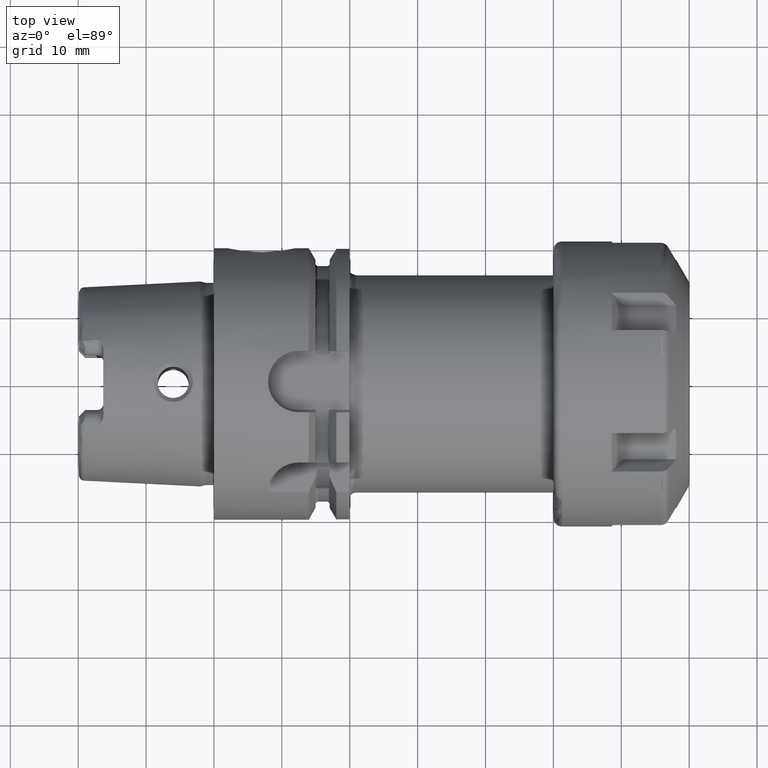
[diagram: clean part render]
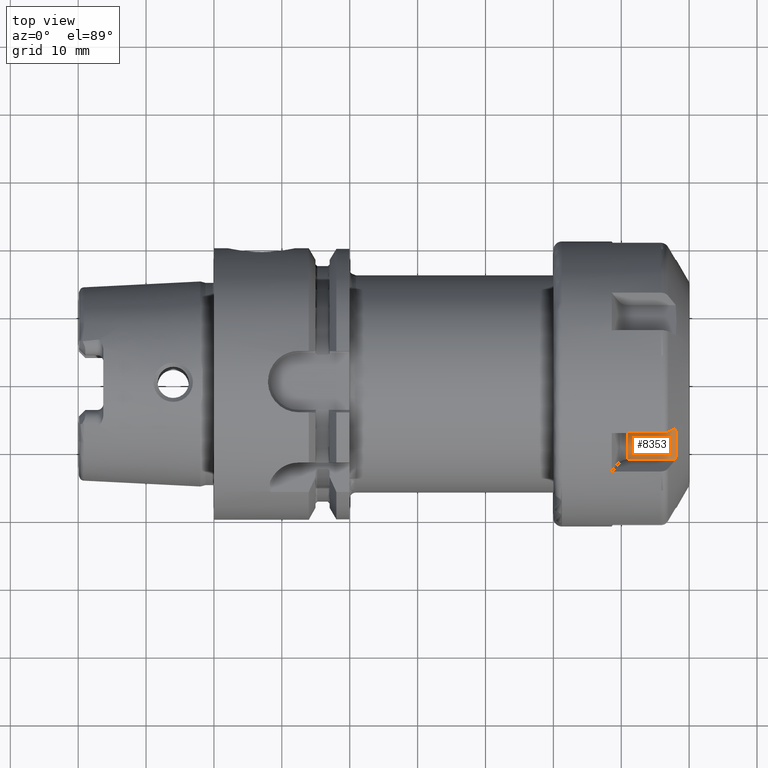
[diagram: same view with one face highlighted and labeled with its STEP entity id]
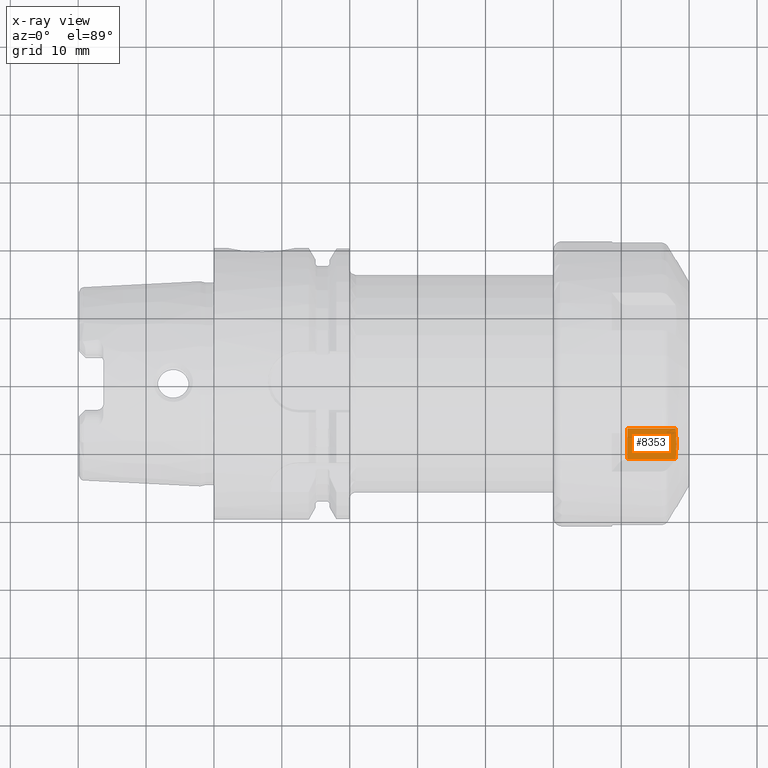
[diagram: x-ray of the same camera — body ghosted, the highlighted face saturated]
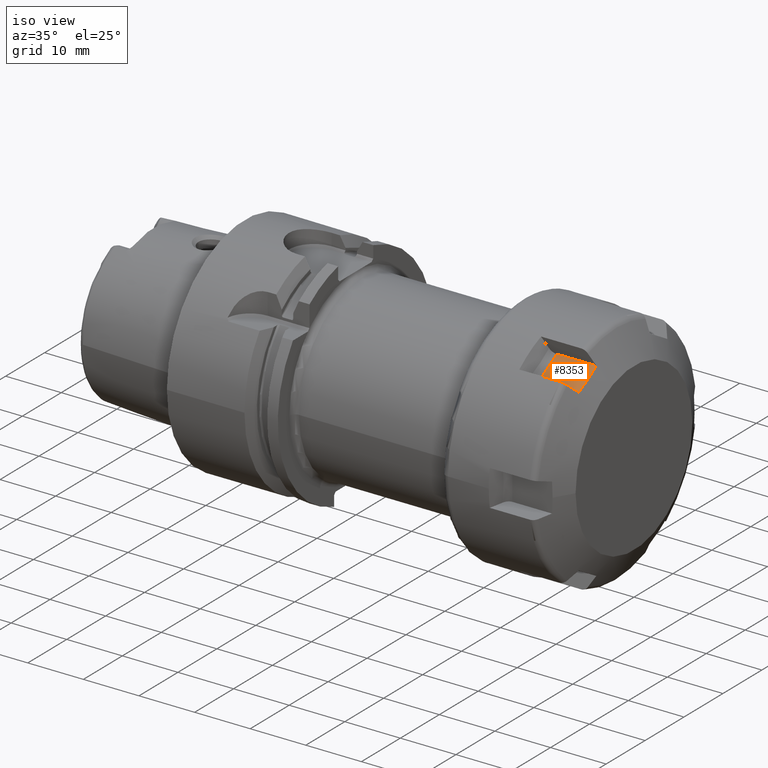
[diagram: same view with one face highlighted and labeled with its STEP entity id]
A machine part, top view. The second image highlights one B-rep face of the part: STEP entity #8353.
The next image is the same camera in x-ray: the body ghosted, the highlighted face saturated — about 0% of this face is hidden behind the body in this view.
A second angle (iso view) of the same face is appended — the face is thin or edge-on in the first view.
In plain terms, the highlighted planar face has unit normal (0, 0.5, -0.866).
Its self-contained STEP definition (entity closure, byte-faithful):
#6989=CARTESIAN_POINT('',(1.803119743883E1,-1.136443912607E1,1.448378596587E1));
#6995=CARTESIAN_POINT('',(1.803119743883E1,-6.861107026386E0,1.708378596587E1));
#6996=CARTESIAN_POINT('',(1.807831826555E1,-7.361586372305E0,1.679483408078E1));
#6997=CARTESIAN_POINT('',(1.814168574823E1,-8.362425592320E0,1.621699928769E1));
#6998=CARTESIAN_POINT('',(1.814168449187E1,-9.863151221670E0,1.535055494160E1));
#6999=CARTESIAN_POINT('',(1.807831703246E1,-1.086397287704E1,1.477273028946E1));
#7000=CARTESIAN_POINT('',(1.803119743883E1,-1.136443912607E1,1.448378596587E1));
#7006=CARTESIAN_POINT('',(1.803119743883E1,-6.861107026386E0,1.708378596587E1));
#7327=CARTESIAN_POINT('',(1.091113881527E1,-6.861107028238E0,1.708378597059E1));
#7333=DIRECTION('',(-1.E0,-2.600749620586E-10,6.627068754585E-10));
#7334=VECTOR('',#7333,7.120058623564E0);
#7335=CARTESIAN_POINT('',(1.803119743883E1,-6.861107026386E0,1.708378596587E1));
#7336=LINE('',#7335,#7334);
#7337=CARTESIAN_POINT('',(1.091113747860E1,-1.136443912681E1,1.448378596699E1));
#7349=CARTESIAN_POINT('',(1.091113881527E1,-6.861107028238E0,1.708378597059E1));
#7350=CARTESIAN_POINT('',(1.092865653647E1,-7.061178081398E0,1.696827487175E1));
#7351=CARTESIAN_POINT('',(1.096119172920E1,-7.483856760262E0,1.672424124711E1));
#7352=CARTESIAN_POINT('',(1.099758211683E1,-8.203344710008E0,1.630884467581E1));
#7353=CARTESIAN_POINT('',(1.101325415215E1,-8.956262504904E0,1.587414738702E1));
#7354=CARTESIAN_POINT('',(1.100709161601E1,-9.666574718729E0,1.546404843793E1));
#7355=CARTESIAN_POINT('',(1.098479432369E1,-1.029984759251E1,1.509842817594E1));
#7356=CARTESIAN_POINT('',(1.095250332830E1,-1.085631427438E1,1.477715197994E1));
#7357=CARTESIAN_POINT('',(1.092546328394E1,-1.120082054068E1,1.457825121272E1));
#7358=CARTESIAN_POINT('',(1.091113747860E1,-1.136443912681E1,1.448378596699E1));
#7360=DIRECTION('',(-1.E0,-1.050718696419E-10,1.574265527247E-10));
#7361=VECTOR('',#7360,7.120059960230E0);
#7362=CARTESIAN_POINT('',(1.803119743883E1,-1.136443912607E1,1.448378596587E1));
#7363=LINE('',#7362,#7361);
#7504=VERTEX_POINT('',#7006);
#7505=VERTEX_POINT('',#6989);
#7513=VERTEX_POINT('',#7337);
#7516=VERTEX_POINT('',#7327);
#8342=CARTESIAN_POINT('',(2.E1,-1.136443912607E1,1.448378596587E1));
#8343=DIRECTION('',(0.E0,5.E-1,-8.660254037844E-1));
#8344=DIRECTION('',(0.E0,8.660254037844E-1,5.E-1));
#8345=AXIS2_PLACEMENT_3D('',#8342,#8343,#8344);
#8346=PLANE('',#8345);
#8347=ORIENTED_EDGE('',*,*,#8321,.F.);
#8348=ORIENTED_EDGE('',*,*,#8266,.F.);
#8349=ORIENTED_EDGE('',*,*,#7915,.T.);
#8350=ORIENTED_EDGE('',*,*,#8332,.T.);
#8351=EDGE_LOOP('',(#8347,#8348,#8349,#8350));
#8352=FACE_OUTER_BOUND('',#8351,.F.);
#8353=ADVANCED_FACE('',(#8352),#8346,.F.);
#7001=B_SPLINE_CURVE_WITH_KNOTS('',3,(#6995,#6996,#6997,#6998,#6999,#7000),
.UNSPECIFIED.,.F.,.F.,(4,1,1,4),(0.E0,3.333333333333E-1,6.666666666667E-1,1.E0),
.UNSPECIFIED.);
#7359=B_SPLINE_CURVE_WITH_KNOTS('',3,(#7349,#7350,#7351,#7352,#7353,#7354,#7355,
#7356,#7357,#7358),.UNSPECIFIED.,.F.,.F.,(4,1,1,1,1,1,1,4),(0.E0,
1.428571428571E-1,2.857142857143E-1,4.285714285714E-1,5.714285714286E-1,
7.142857142857E-1,8.571428571429E-1,1.E0),.UNSPECIFIED.);
#7915=EDGE_CURVE('',#7504,#7505,#7001,.T.);
#8266=EDGE_CURVE('',#7504,#7516,#7336,.T.);
#8321=EDGE_CURVE('',#7516,#7513,#7359,.T.);
#8332=EDGE_CURVE('',#7505,#7513,#7363,.T.);